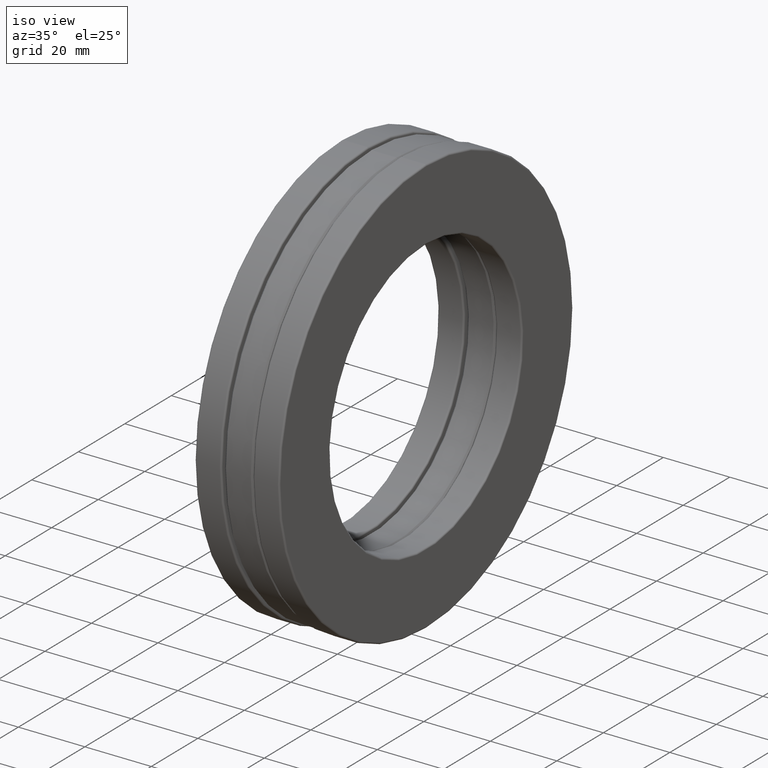
[diagram: clean part render]
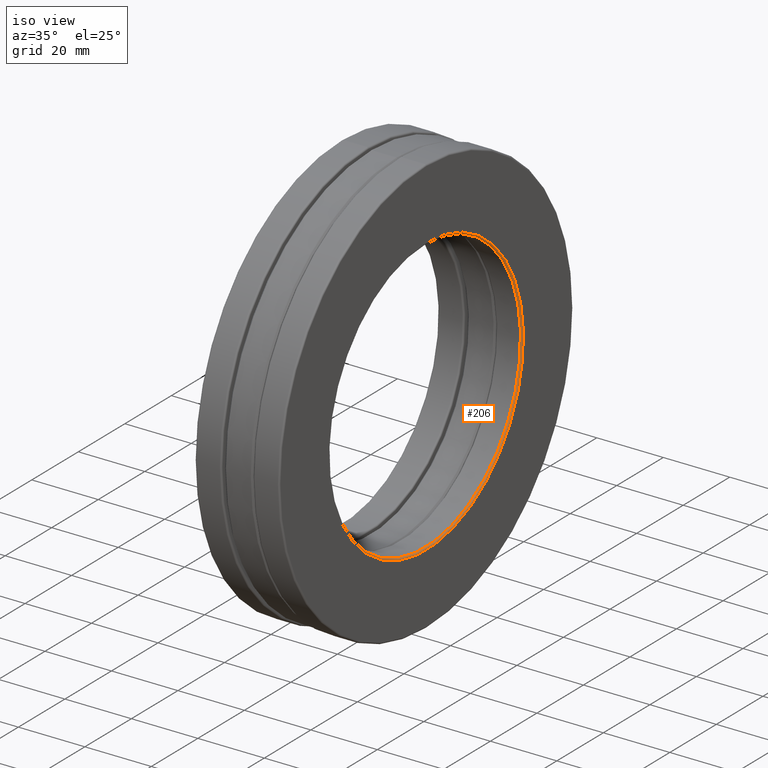
[diagram: same view with one face highlighted and labeled with its STEP entity id]
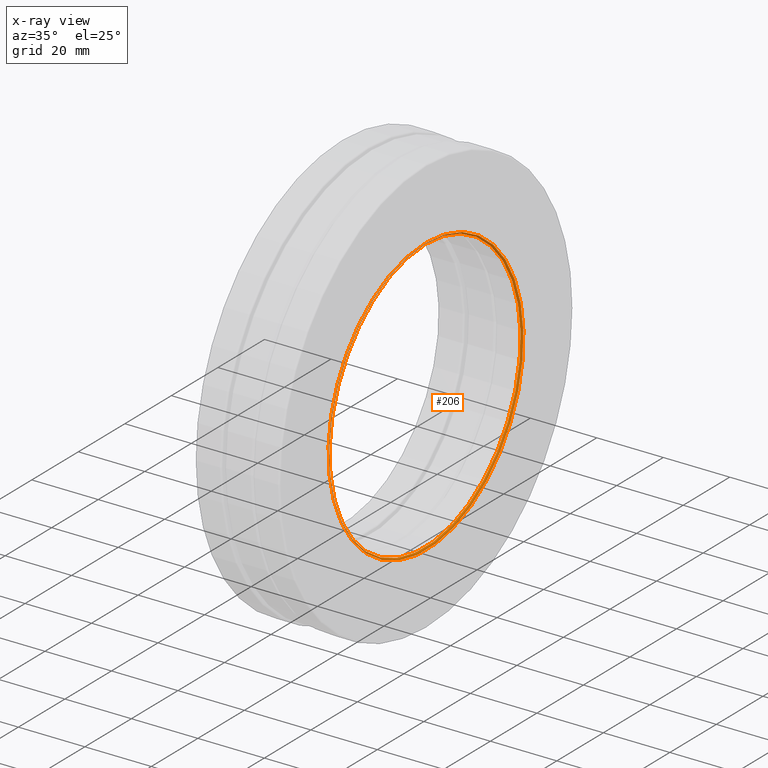
[diagram: x-ray of the same camera — body ghosted, the highlighted face saturated]
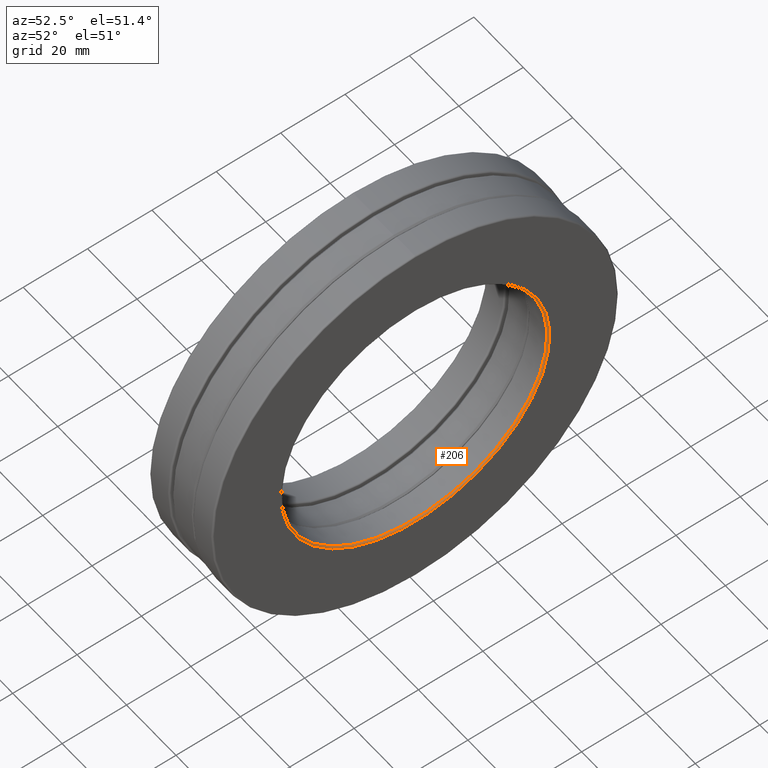
[diagram: same view with one face highlighted and labeled with its STEP entity id]
A machine part, iso view. The second image highlights one B-rep face of the part: STEP entity #206.
The next image is the same camera in x-ray: the body ghosted, the highlighted face saturated — about 0% of this face is hidden behind the body in this view.
A second angle (auxiliary view) of the same face is appended — the face is thin or edge-on in the first view.
In plain terms, the highlighted toroidal blend (fillet) surface has major radius 41.783 mm and minor (blend) radius 0.508 mm.
Its self-contained STEP definition (entity closure, byte-faithful):
#27 = DIRECTION ( 'NONE',  ( 0.0000000000000000000, 0.0000000000000000000, 1.000000000000000000 ) ) ;
#110 = EDGE_LOOP ( 'NONE', ( #337 ) ) ;
#127 = EDGE_LOOP ( 'NONE', ( #991 ) ) ;
#134 = AXIS2_PLACEMENT_3D ( 'NONE', #786, #1137, #662 ) ;
#172 = DIRECTION ( 'NONE',  ( 0.0000000000000000000, 0.0000000000000000000, 1.000000000000000000 ) ) ;
#206 = ADVANCED_FACE ( 'NONE', ( #1162, #1279 ), #397, .T. ) ;
#250 = CIRCLE ( 'NONE', #134, 1.625000000000000000 ) ;
#321 = DIRECTION ( 'NONE',  ( -1.000000000000000000, -0.0000000000000000000, -0.0000000000000000000 ) ) ;
#337 = ORIENTED_EDGE ( 'NONE', *, *, #1356, .T. ) ;
#369 = VERTEX_POINT ( 'NONE', #377 ) ;
#377 = CARTESIAN_POINT ( 'NONE',  ( 0.4800000000000000900, 0.0000000000000000000, 1.625000000000000000 ) ) ;
#397 = TOROIDAL_SURFACE ( 'NONE', #616, 1.645000000000000000, 0.01999999999999999000 ) ;
#512 = CARTESIAN_POINT ( 'NONE',  ( 0.5000000000000000000, 0.0000000000000000000, 0.0000000000000000000 ) ) ;
#616 = AXIS2_PLACEMENT_3D ( 'NONE', #1205, #321, #27 ) ;
#662 = DIRECTION ( 'NONE',  ( 0.0000000000000000000, 0.0000000000000000000, 1.000000000000000000 ) ) ;
#786 = CARTESIAN_POINT ( 'NONE',  ( 0.4800000000000000900, 0.0000000000000000000, 0.0000000000000000000 ) ) ;
#853 = VERTEX_POINT ( 'NONE', #1036 ) ;
#991 = ORIENTED_EDGE ( 'NONE', *, *, #1069, .F. ) ;
#1036 = CARTESIAN_POINT ( 'NONE',  ( 0.5000000000000000000, 0.0000000000000000000, 1.645000000000000000 ) ) ;
#1069 = EDGE_CURVE ( 'NONE', #853, #853, #1470, .T. ) ;
#1084 = AXIS2_PLACEMENT_3D ( 'NONE', #512, #1189, #172 ) ;
#1137 = DIRECTION ( 'NONE',  ( -1.000000000000000000, -0.0000000000000000000, -0.0000000000000000000 ) ) ;
#1162 = FACE_OUTER_BOUND ( 'NONE', #127, .T. ) ;
#1189 = DIRECTION ( 'NONE',  ( -1.000000000000000000, -0.0000000000000000000, -0.0000000000000000000 ) ) ;
#1205 = CARTESIAN_POINT ( 'NONE',  ( 0.4800000000000000900, 0.0000000000000000000, 0.0000000000000000000 ) ) ;
#1279 = FACE_OUTER_BOUND ( 'NONE', #110, .T. ) ;
#1356 = EDGE_CURVE ( 'NONE', #369, #369, #250, .T. ) ;
#1470 = CIRCLE ( 'NONE', #1084, 1.645000000000000000 ) ;